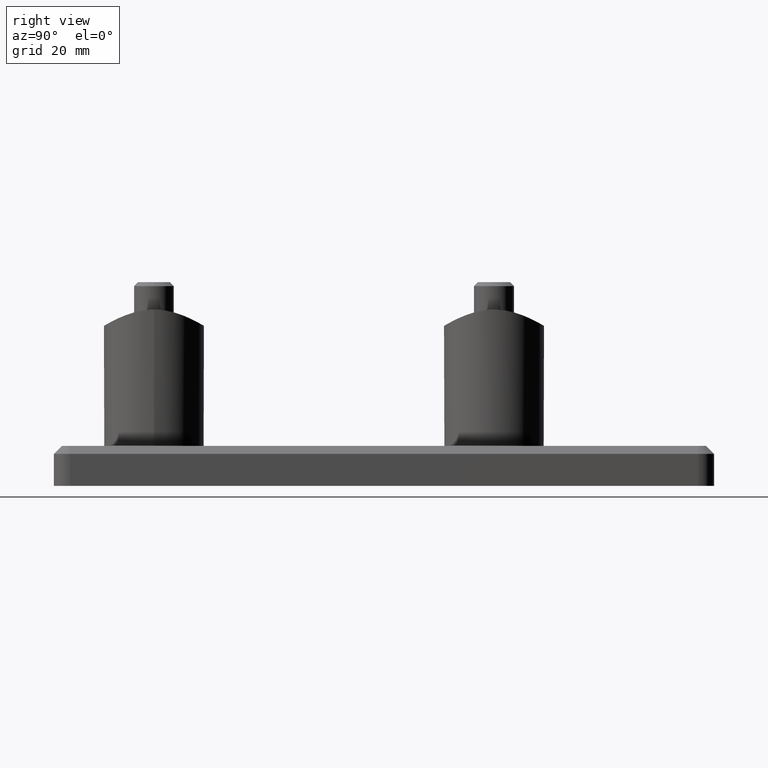
[diagram: clean part render]
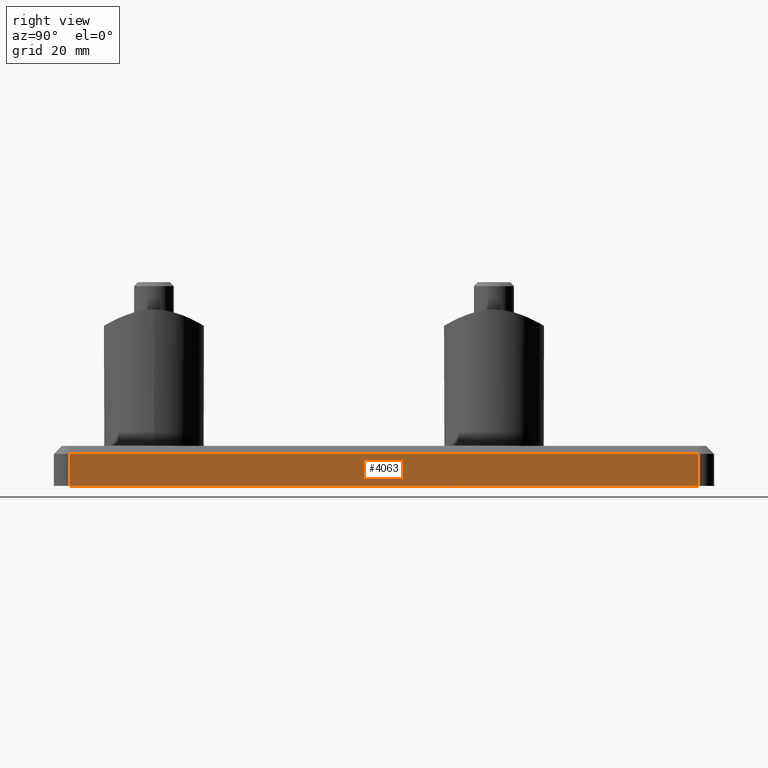
[diagram: same view with one face highlighted and labeled with its STEP entity id]
A machine part, right view. The second image highlights one B-rep face of the part: STEP entity #4063.
In plain terms, the highlighted planar face has unit normal (-1, 0, 0).
Its self-contained STEP definition (entity closure, byte-faithful):
#498 = DIRECTION ( 'NONE',  ( -0.000000000000000000, -0.000000000000000000, 1.000000000000000000 ) ) ;
#1184 = ORIENTED_EDGE ( 'NONE', *, *, #13837, .T. ) ;
#1224 = PLANE ( 'NONE',  #1495 ) ;
#1291 = DIRECTION ( 'NONE',  ( 0.000000000000000000, 0.000000000000000000, 1.000000000000000000 ) ) ;
#1450 = LINE ( 'NONE', #6088, #9626 ) ;
#1495 = AXIS2_PLACEMENT_3D ( 'NONE', #15504, #10757, #1291 ) ;
#1672 = DIRECTION ( 'NONE',  ( 0.000000000000000000, -1.000000000000000000, 0.000000000000000000 ) ) ;
#2852 = DIRECTION ( 'NONE',  ( 0.000000000000000000, 0.000000000000000000, -1.000000000000000000 ) ) ;
#4063 = ADVANCED_FACE ( 'NONE', ( #10986 ), #1224, .F. ) ;
#4140 = CARTESIAN_POINT ( 'NONE',  ( 30.00000000000000000, -78.50000000000000000, 0.000000000000000000 ) ) ;
#6088 = CARTESIAN_POINT ( 'NONE',  ( 30.00000000000000000, -78.50000000000000000, 10.00000000000000000 ) ) ;
#6372 = ORIENTED_EDGE ( 'NONE', *, *, #16879, .T. ) ;
#7522 = DIRECTION ( 'NONE',  ( 0.000000000000000000, 1.000000000000000000, 0.000000000000000000 ) ) ;
#8580 = EDGE_CURVE ( 'NONE', #17420, #18939, #19281, .T. ) ;
#9626 = VECTOR ( 'NONE', #2852, 1000.000000000000000 ) ;
#9680 = VECTOR ( 'NONE', #1672, 1000.000000000000000 ) ;
#9881 = CARTESIAN_POINT ( 'NONE',  ( 30.00000000000000000, 78.50000000000000000, 7.999999999999984901 ) ) ;
#10116 = EDGE_LOOP ( 'NONE', ( #6372, #16864, #1184, #12952 ) ) ;
#10276 = VERTEX_POINT ( 'NONE', #4140 ) ;
#10439 = CARTESIAN_POINT ( 'NONE',  ( 30.00000000000000000, -82.50000000000000000, 0.000000000000000000 ) ) ;
#10757 = DIRECTION ( 'NONE',  ( -1.000000000000000000, 0.000000000000000000, 0.000000000000000000 ) ) ;
#10986 = FACE_OUTER_BOUND ( 'NONE', #10116, .T. ) ;
#11632 = CARTESIAN_POINT ( 'NONE',  ( 30.00000000000000000, 78.50000000000000000, 10.00000000000000000 ) ) ;
#11853 = LINE ( 'NONE', #10439, #18501 ) ;
#12952 = ORIENTED_EDGE ( 'NONE', *, *, #13014, .T. ) ;
#13014 = EDGE_CURVE ( 'NONE', #10276, #15226, #11853, .T. ) ;
#13837 = EDGE_CURVE ( 'NONE', #18939, #10276, #1450, .T. ) ;
#14492 = LINE ( 'NONE', #11632, #20158 ) ;
#14506 = CARTESIAN_POINT ( 'NONE',  ( 30.00000000000000000, -78.50000000000000000, 7.999999999999984901 ) ) ;
#15226 = VERTEX_POINT ( 'NONE', #18228 ) ;
#15504 = CARTESIAN_POINT ( 'NONE',  ( 30.00000000000000000, -82.50000000000000000, 10.00000000000000000 ) ) ;
#16861 = CARTESIAN_POINT ( 'NONE',  ( 30.00000000000000000, -78.50000000000000000, 7.999999999999984901 ) ) ;
#16864 = ORIENTED_EDGE ( 'NONE', *, *, #8580, .T. ) ;
#16879 = EDGE_CURVE ( 'NONE', #15226, #17420, #14492, .T. ) ;
#17420 = VERTEX_POINT ( 'NONE', #9881 ) ;
#18228 = CARTESIAN_POINT ( 'NONE',  ( 30.00000000000000000, 78.50000000000000000, 0.000000000000000000 ) ) ;
#18501 = VECTOR ( 'NONE', #7522, 1000.000000000000000 ) ;
#18939 = VERTEX_POINT ( 'NONE', #16861 ) ;
#19281 = LINE ( 'NONE', #14506, #9680 ) ;
#20158 = VECTOR ( 'NONE', #498, 1000.000000000000000 ) ;